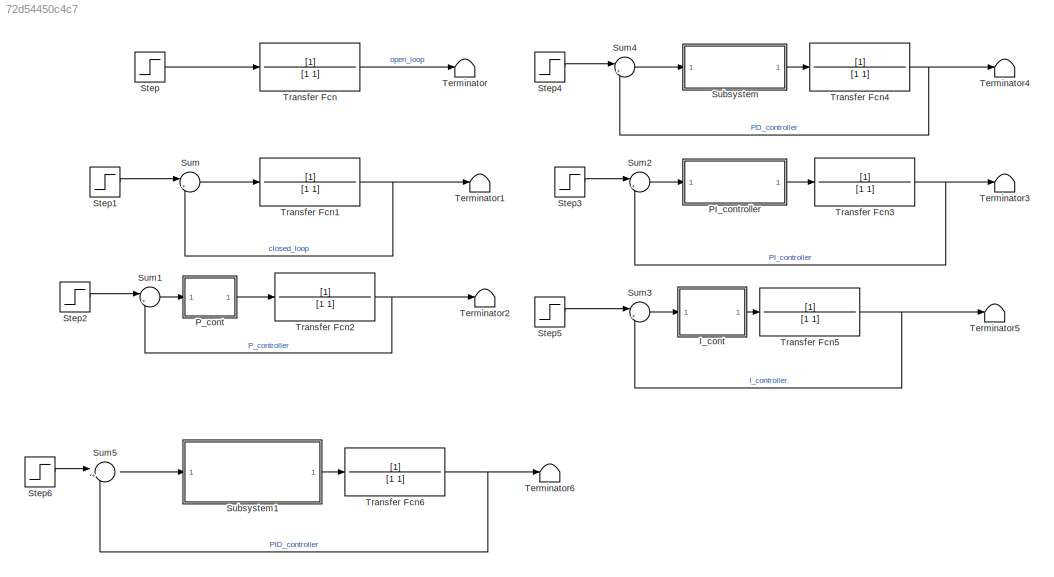
MODEL slx_72d54450c4c7
KIND model
CONFIG AbsTol = auto
CONFIG EnableMultiTasking = off
CONFIG FixedStep = auto
CONFIG MaxStep = auto
CONFIG MinStep = auto
CONFIG RelTol = 1e-3
CONFIG SampleTimeConstraint = Unconstrained
CONFIG SolverName = VariableStepAuto
CONFIG StartTime = 0.0
CONFIG StopTime = 10
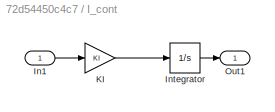
BLOCK [SubSystem] I_cont
BLOCK [Inport] I_cont/In1
BLOCK [Integrator] I_cont/Integrator
BLOCK [Gain] I_cont/KI
  Gain = KI
BLOCK [Outport] I_cont/Out1
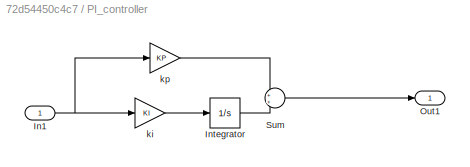
BLOCK [SubSystem] PI_controller
BLOCK [Inport] PI_controller/In1
BLOCK [Integrator] PI_controller/Integrator
BLOCK [Outport] PI_controller/Out1
BLOCK [Sum] PI_controller/Sum
BLOCK [Gain] PI_controller/ki
  Gain = KI
BLOCK [Gain] PI_controller/kp
  Gain = KP
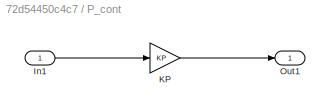
BLOCK [SubSystem] P_cont
BLOCK [Inport] P_cont/In1
BLOCK [Gain] P_cont/KP
  Gain = KP
BLOCK [Outport] P_cont/Out1
BLOCK [Step] Step
  SampleTime = 0
BLOCK [Step] Step1
  SampleTime = 0
BLOCK [Step] Step2
  SampleTime = 0
BLOCK [Step] Step3
  SampleTime = 0
BLOCK [Step] Step4
  NameLocation = left
  SampleTime = 0
BLOCK [Step] Step5
  SampleTime = 0
BLOCK [Step] Step6
  SampleTime = 0
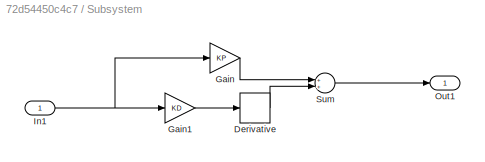
BLOCK [SubSystem] Subsystem
BLOCK [Derivative] Subsystem/Derivative
BLOCK [Gain] Subsystem/Gain
  Gain = KP
BLOCK [Gain] Subsystem/Gain1
  Gain = KD
BLOCK [Inport] Subsystem/In1
BLOCK [Outport] Subsystem/Out1
BLOCK [Sum] Subsystem/Sum
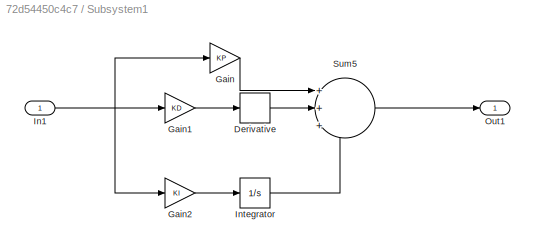
BLOCK [SubSystem] Subsystem1
BLOCK [Derivative] Subsystem1/Derivative
BLOCK [Gain] Subsystem1/Gain
  Gain = KP
BLOCK [Gain] Subsystem1/Gain1
  Gain = KD
BLOCK [Gain] Subsystem1/Gain2
  Gain = KI
BLOCK [Inport] Subsystem1/In1
BLOCK [Integrator] Subsystem1/Integrator
BLOCK [Outport] Subsystem1/Out1
BLOCK [Sum] Subsystem1/Sum5
  Inputs = +++
BLOCK [Sum] Sum
  Inputs = |+-
BLOCK [Sum] Sum1
  Inputs = |+-
BLOCK [Sum] Sum2
  Inputs = |+-
BLOCK [Sum] Sum3
  Inputs = |+-
BLOCK [Sum] Sum4
  Inputs = |+-
BLOCK [Sum] Sum5
  Inputs = |+-
BLOCK [Terminator] Terminator
BLOCK [Terminator] Terminator1
BLOCK [Terminator] Terminator2
BLOCK [Terminator] Terminator3
BLOCK [Terminator] Terminator4
BLOCK [Terminator] Terminator5
BLOCK [Terminator] Terminator6
BLOCK [TransferFcn] Transfer Fcn
BLOCK [TransferFcn] Transfer Fcn1
BLOCK [TransferFcn] Transfer Fcn2
BLOCK [TransferFcn] Transfer Fcn3
BLOCK [TransferFcn] Transfer Fcn4
BLOCK [TransferFcn] Transfer Fcn5
BLOCK [TransferFcn] Transfer Fcn6
LINE I_cont/In1:1 -> I_cont/KI:1
LINE I_cont/Integrator:1 -> I_cont/Out1:1
LINE I_cont/KI:1 -> I_cont/Integrator:1
LINE I_cont:1 -> Transfer Fcn5:1
NET PI_controller/In1:1 -> PI_controller/ki:1, PI_controller/kp:1
LINE PI_controller/Integrator:1 -> PI_controller/Sum:2
LINE PI_controller/Sum:1 -> PI_controller/Out1:1
LINE PI_controller/ki:1 -> PI_controller/Integrator:1
LINE PI_controller/kp:1 -> PI_controller/Sum:1
LINE PI_controller:1 -> Transfer Fcn3:1
LINE P_cont/In1:1 -> P_cont/KP:1
LINE P_cont/KP:1 -> P_cont/Out1:1
LINE P_cont:1 -> Transfer Fcn2:1
LINE Step1:1 -> Sum:1
LINE Step2:1 -> Sum1:1
LINE Step3:1 -> Sum2:1
LINE Step4:1 -> Sum4:1
LINE Step5:1 -> Sum3:1
LINE Step6:1 -> Sum5:1
LINE Step:1 -> Transfer Fcn:1
LINE Subsystem/Derivative:1 -> Subsystem/Sum:2
LINE Subsystem/Gain1:1 -> Subsystem/Derivative:1
LINE Subsystem/Gain:1 -> Subsystem/Sum:1
NET Subsystem/In1:1 -> Subsystem/Gain1:1, Subsystem/Gain:1
LINE Subsystem/Sum:1 -> Subsystem/Out1:1
LINE Subsystem1/Derivative:1 -> Subsystem1/Sum5:2
LINE Subsystem1/Gain1:1 -> Subsystem1/Derivative:1
LINE Subsystem1/Gain2:1 -> Subsystem1/Integrator:1
LINE Subsystem1/Gain:1 -> Subsystem1/Sum5:1
NET Subsystem1/In1:1 -> Subsystem1/Gain1:1, Subsystem1/Gain2:1, Subsystem1/Gain:1
LINE Subsystem1/Integrator:1 -> Subsystem1/Sum5:3
LINE Subsystem1/Sum5:1 -> Subsystem1/Out1:1
LINE Subsystem1:1 -> Transfer Fcn6:1
LINE Subsystem:1 -> Transfer Fcn4:1
LINE Sum1:1 -> P_cont:1
LINE Sum2:1 -> PI_controller:1
LINE Sum3:1 -> I_cont:1
LINE Sum4:1 -> Subsystem:1
LINE Sum5:1 -> Subsystem1:1
LINE Sum:1 -> Transfer Fcn1:1
NET Transfer Fcn1:1 -> Sum:2, Terminator1:1
NET Transfer Fcn2:1 -> Sum1:2, Terminator2:1
NET Transfer Fcn3:1 -> Sum2:2, Terminator3:1
NET Transfer Fcn4:1 -> Sum4:2, Terminator4:1
NET Transfer Fcn5:1 -> Sum3:2, Terminator5:1
NET Transfer Fcn6:1 -> Sum5:2, Terminator6:1
LINE Transfer Fcn:1 -> Terminator:1
note: NET lines group one-source signal fan-out (src -> all destinations, sorted); 1:1 wires keep LINE
